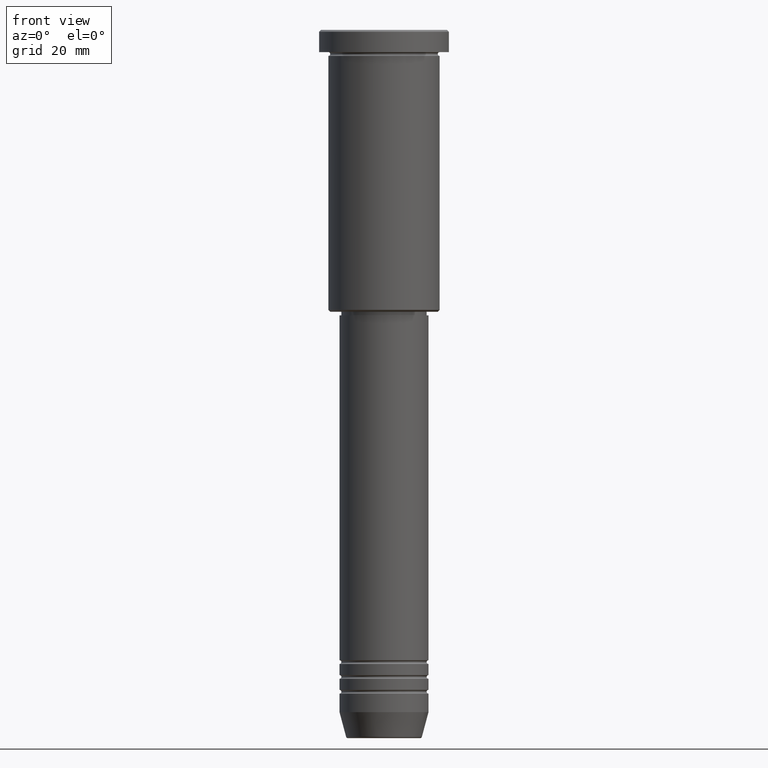
[diagram: clean part render]
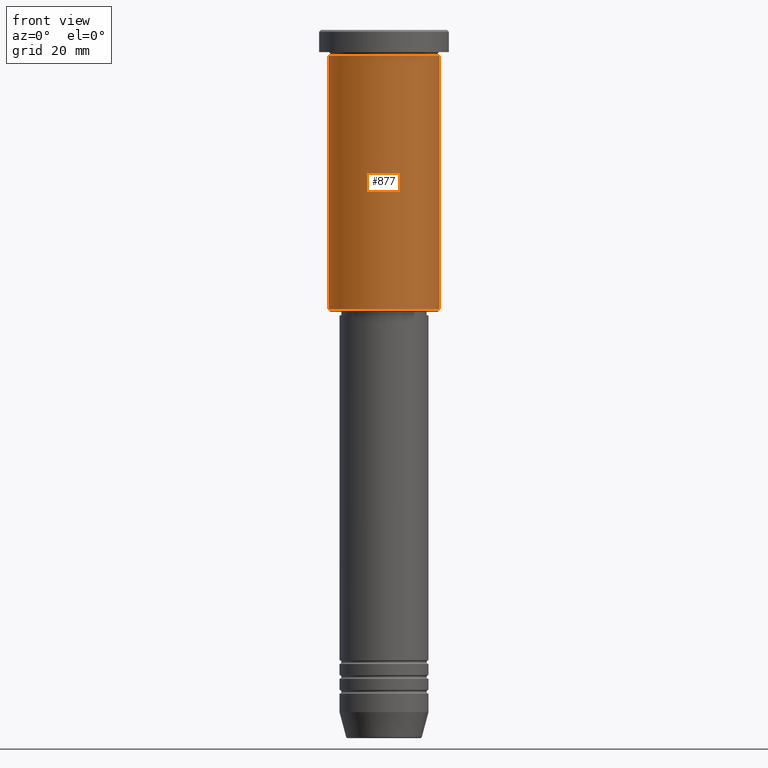
[diagram: same view with one face highlighted and labeled with its STEP entity id]
A machine part, front view. The second image highlights one B-rep face of the part: STEP entity #877.
In plain terms, the highlighted cylindrical surface (partial cylindrical patch) has radius 15 mm, axis along (-0, -0, 1).
Its self-contained STEP definition (entity closure, byte-faithful):
#60 = FACE_OUTER_BOUND ( 'NONE', #213, .T. ) ;
#80 = VERTEX_POINT ( 'NONE', #568 ) ;
#87 = DIRECTION ( 'NONE',  ( -0.000000000000000000, -0.000000000000000000, 1.000000000000000000 ) ) ;
#159 = CARTESIAN_POINT ( 'NONE',  ( 0.000000000000000000, 0.000000000000000000, 0.000000000000000000 ) ) ;
#164 = VERTEX_POINT ( 'NONE', #1177 ) ;
#197 = CARTESIAN_POINT ( 'NONE',  ( 0.000000000000000000, 0.000000000000000000, -75.49999999999997158 ) ) ;
#213 = EDGE_LOOP ( 'NONE', ( #520, #300, #686, #459 ) ) ;
#266 = DIRECTION ( 'NONE',  ( -0.000000000000000000, -0.000000000000000000, 1.000000000000000000 ) ) ;
#293 = CARTESIAN_POINT ( 'NONE',  ( -15.00000000000000000, 1.836970198721029589E-15, -6.999999999999995559 ) ) ;
#295 = DIRECTION ( 'NONE',  ( -0.000000000000000000, -0.000000000000000000, 1.000000000000000000 ) ) ;
#300 = ORIENTED_EDGE ( 'NONE', *, *, #1009, .T. ) ;
#341 = CARTESIAN_POINT ( 'NONE',  ( -15.00000000000000000, 1.836970198721029589E-15, 0.000000000000000000 ) ) ;
#386 = CARTESIAN_POINT ( 'NONE',  ( 0.000000000000000000, 0.000000000000000000, -6.999999999999995559 ) ) ;
#452 = AXIS2_PLACEMENT_3D ( 'NONE', #159, #266, #708 ) ;
#455 = EDGE_CURVE ( 'NONE', #1108, #164, #990, .T. ) ;
#459 = ORIENTED_EDGE ( 'NONE', *, *, #455, .F. ) ;
#476 = DIRECTION ( 'NONE',  ( -0.000000000000000000, -0.000000000000000000, 1.000000000000000000 ) ) ;
#490 = CARTESIAN_POINT ( 'NONE',  ( 15.00000000000000000, 0.000000000000000000, 0.000000000000000000 ) ) ;
#520 = ORIENTED_EDGE ( 'NONE', *, *, #672, .F. ) ;
#536 = LINE ( 'NONE', #341, #869 ) ;
#554 = CARTESIAN_POINT ( 'NONE',  ( -15.00000000000000000, 1.836970198721029589E-15, -75.49999999999997158 ) ) ;
#568 = CARTESIAN_POINT ( 'NONE',  ( 15.00000000000000000, 0.000000000000000000, -75.49999999999997158 ) ) ;
#599 = VECTOR ( 'NONE', #762, 1000.000000000000000 ) ;
#672 = EDGE_CURVE ( 'NONE', #744, #1108, #536, .T. ) ;
#686 = ORIENTED_EDGE ( 'NONE', *, *, #816, .T. ) ;
#708 = DIRECTION ( 'NONE',  ( 1.000000000000000000, 0.000000000000000000, 0.000000000000000000 ) ) ;
#744 = VERTEX_POINT ( 'NONE', #554 ) ;
#762 = DIRECTION ( 'NONE',  ( -0.000000000000000000, -0.000000000000000000, 1.000000000000000000 ) ) ;
#816 = EDGE_CURVE ( 'NONE', #80, #164, #1037, .T. ) ;
#836 = AXIS2_PLACEMENT_3D ( 'NONE', #386, #295, #1034 ) ;
#869 = VECTOR ( 'NONE', #87, 1000.000000000000000 ) ;
#877 = ADVANCED_FACE ( 'NONE', ( #60 ), #894, .T. ) ;
#891 = CIRCLE ( 'NONE', #1044, 15.00000000000000000 ) ;
#894 = CYLINDRICAL_SURFACE ( 'NONE', #452, 15.00000000000000000 ) ;
#990 = CIRCLE ( 'NONE', #836, 15.00000000000000000 ) ;
#1009 = EDGE_CURVE ( 'NONE', #744, #80, #891, .T. ) ;
#1034 = DIRECTION ( 'NONE',  ( 1.000000000000000000, 0.000000000000000000, 0.000000000000000000 ) ) ;
#1037 = LINE ( 'NONE', #490, #599 ) ;
#1044 = AXIS2_PLACEMENT_3D ( 'NONE', #197, #476, #1093 ) ;
#1093 = DIRECTION ( 'NONE',  ( -1.000000000000000000, 0.000000000000000000, 0.000000000000000000 ) ) ;
#1108 = VERTEX_POINT ( 'NONE', #293 ) ;
#1177 = CARTESIAN_POINT ( 'NONE',  ( 15.00000000000000000, 0.000000000000000000, -6.999999999999995559 ) ) ;